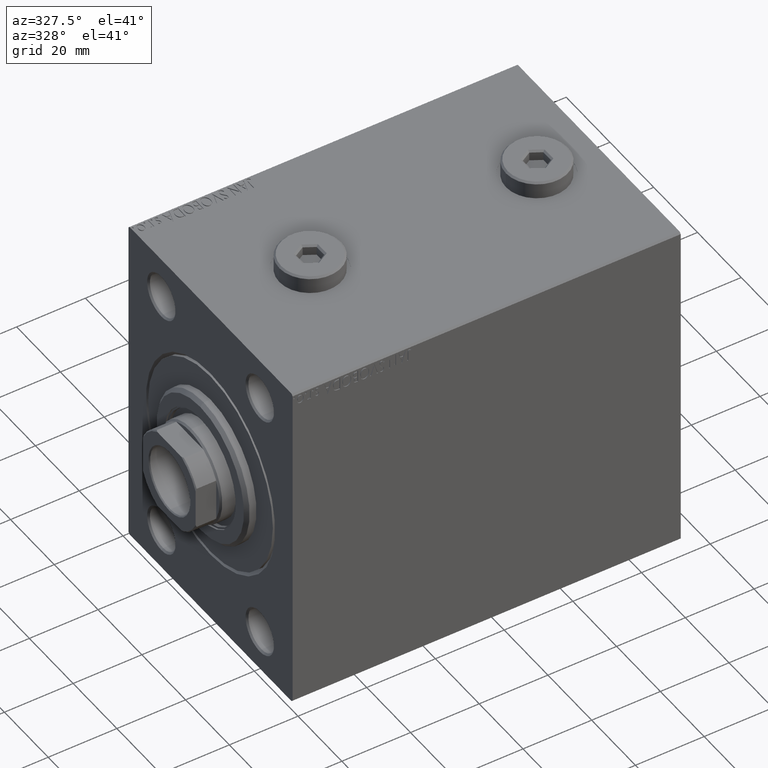
[diagram: clean part render]
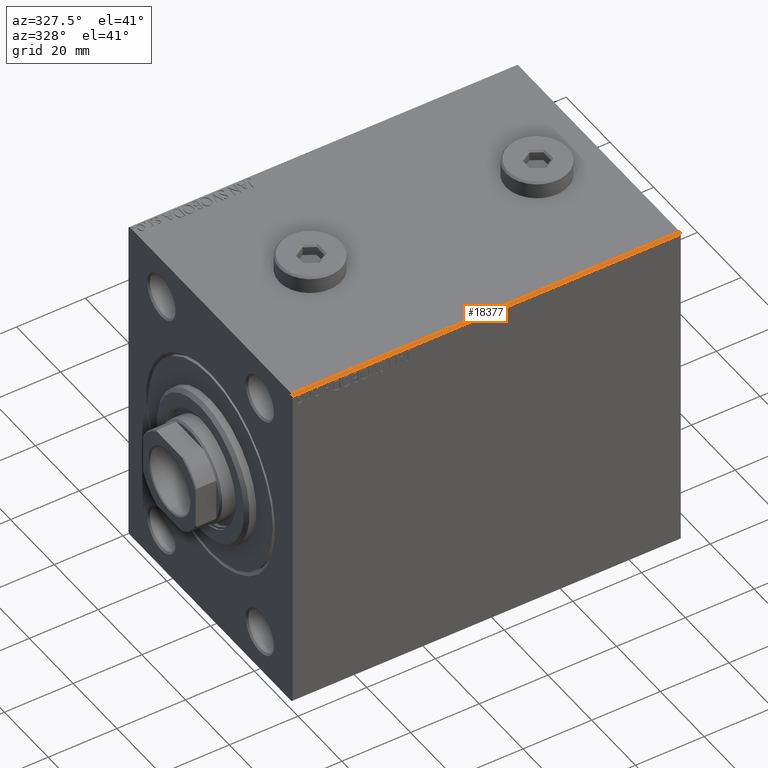
[diagram: same view with one face highlighted and labeled with its STEP entity id]
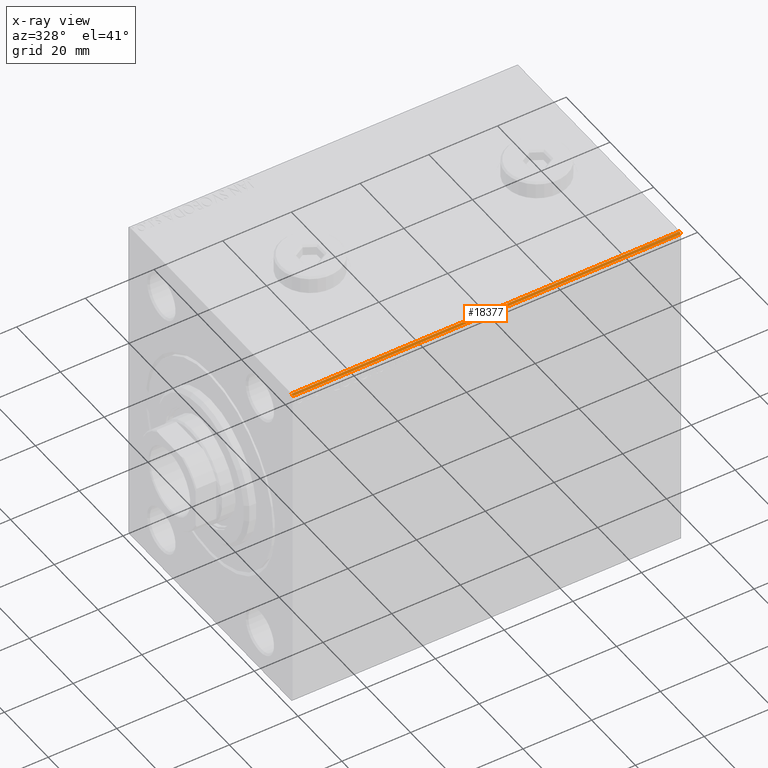
[diagram: x-ray of the same camera — body ghosted, the highlighted face saturated]
A machine part, auxiliary view. The second image highlights one B-rep face of the part: STEP entity #18377.
The next image is the same camera in x-ray: the body ghosted, the highlighted face saturated — about 0% of this face is hidden behind the body in this view.
In plain terms, the highlighted planar face has unit normal (0, 0.7071, -0.7071).
Its self-contained STEP definition (entity closure, byte-faithful):
#374 = VECTOR ( 'NONE', #32500, 1000.000000000000000 ) ;
#734 = VERTEX_POINT ( 'NONE', #28287 ) ;
#2017 = LINE ( 'NONE', #12868, #41343 ) ;
#2691 = VECTOR ( 'NONE', #3953, 1000.000000000000000 ) ;
#3953 = DIRECTION ( 'NONE',  ( 1.000000000000000000, 0.000000000000000000, 0.000000000000000000 ) ) ;
#4947 = VECTOR ( 'NONE', #43080, 1000.000000000000000 ) ;
#5802 = CARTESIAN_POINT ( 'NONE',  ( 0.000000000000000000, -37.50000000000000000, 49.49999999999998579 ) ) ;
#10733 = LINE ( 'NONE', #15097, #4947 ) ;
#11140 = DIRECTION ( 'NONE',  ( 0.000000000000000000, 0.7071067811865622277, -0.7071067811865328068 ) ) ;
#11466 = CARTESIAN_POINT ( 'NONE',  ( 113.0000000000000000, -37.50000000000000000, 49.49999999999998579 ) ) ;
#11521 = EDGE_CURVE ( 'NONE', #734, #36709, #41891, .T. ) ;
#12868 = CARTESIAN_POINT ( 'NONE',  ( 0.000000000000000000, -37.50000000000000000, 49.49999999999998579 ) ) ;
#14110 = CARTESIAN_POINT ( 'NONE',  ( 113.0000000000000000, -37.50000000000000000, 49.49999999999998579 ) ) ;
#14606 = CARTESIAN_POINT ( 'NONE',  ( 113.0000000000000000, -37.50000000000000000, 49.49999999999998579 ) ) ;
#15097 = CARTESIAN_POINT ( 'NONE',  ( 113.0000000000000000, -43.50000000000077449, 43.49999999999896261 ) ) ;
#15452 = VERTEX_POINT ( 'NONE', #14110 ) ;
#17781 = ORIENTED_EDGE ( 'NONE', *, *, #20373, .F. ) ;
#18377 = ADVANCED_FACE ( 'NONE', ( #43035 ), #24802, .F. ) ;
#20373 = EDGE_CURVE ( 'NONE', #30504, #734, #2017, .T. ) ;
#23004 = ORIENTED_EDGE ( 'NONE', *, *, #32482, .F. ) ;
#24802 = PLANE ( 'NONE',  #30836 ) ;
#28287 = CARTESIAN_POINT ( 'NONE',  ( 0.000000000000000000, -37.00000000000002132, 49.99999999999998579 ) ) ;
#29449 = EDGE_LOOP ( 'NONE', ( #32985, #41838, #17781, #23004 ) ) ;
#30504 = VERTEX_POINT ( 'NONE', #5802 ) ;
#30836 = AXIS2_PLACEMENT_3D ( 'NONE', #14606, #11140, #42595 ) ;
#32482 = EDGE_CURVE ( 'NONE', #15452, #30504, #32722, .T. ) ;
#32500 = DIRECTION ( 'NONE',  ( -1.000000000000000000, 0.000000000000000000, 0.000000000000000000 ) ) ;
#32722 = LINE ( 'NONE', #11466, #374 ) ;
#32985 = ORIENTED_EDGE ( 'NONE', *, *, #37850, .F. ) ;
#36709 = VERTEX_POINT ( 'NONE', #41085 ) ;
#37850 = EDGE_CURVE ( 'NONE', #36709, #15452, #10733, .T. ) ;
#38198 = CARTESIAN_POINT ( 'NONE',  ( 113.0000000000000000, -37.00000000000002132, 49.99999999999998579 ) ) ;
#41073 = DIRECTION ( 'NONE',  ( -0.000000000000000000, 0.7071067811865328068, 0.7071067811865622277 ) ) ;
#41085 = CARTESIAN_POINT ( 'NONE',  ( 113.0000000000000000, -37.00000000000002132, 49.99999999999998579 ) ) ;
#41343 = VECTOR ( 'NONE', #41073, 1000.000000000000000 ) ;
#41838 = ORIENTED_EDGE ( 'NONE', *, *, #11521, .F. ) ;
#41891 = LINE ( 'NONE', #38198, #2691 ) ;
#42595 = DIRECTION ( 'NONE',  ( -1.000000000000000000, 0.000000000000000000, 0.000000000000000000 ) ) ;
#43035 = FACE_OUTER_BOUND ( 'NONE', #29449, .T. ) ;
#43080 = DIRECTION ( 'NONE',  ( 0.000000000000000000, -0.7071067811865328068, -0.7071067811865622277 ) ) ;